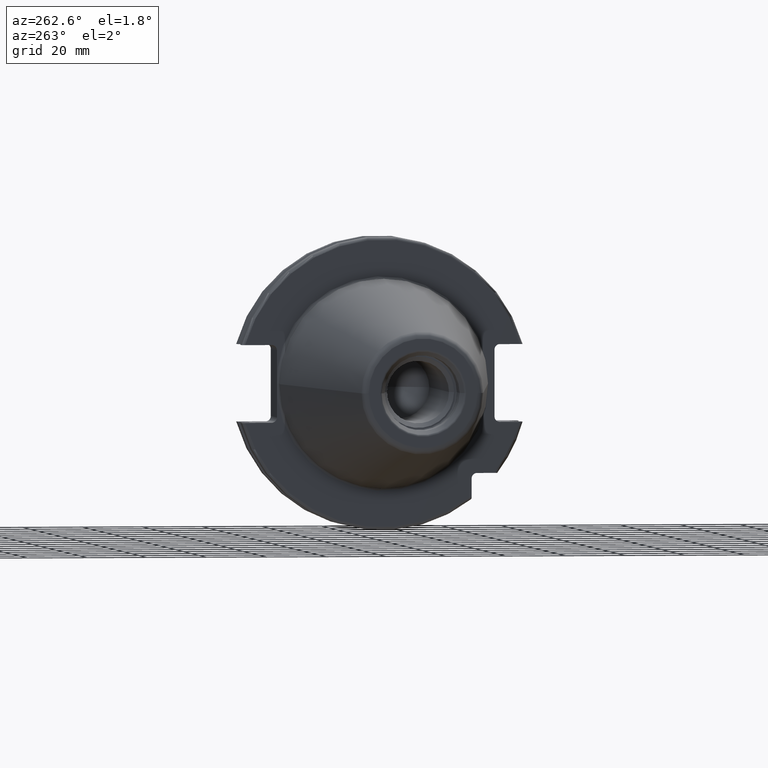
[diagram: clean part render]
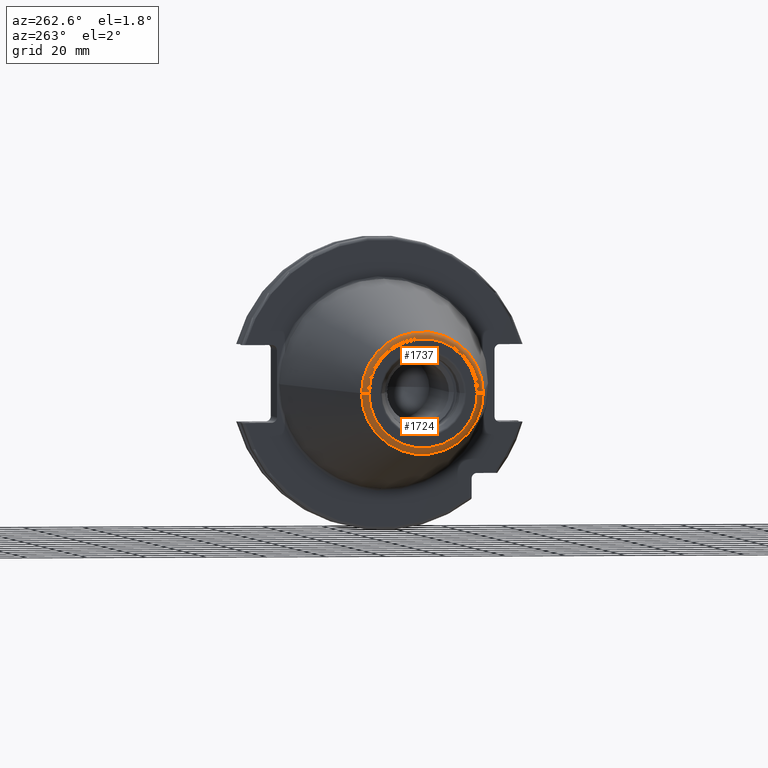
[diagram: same view with one multi-face feature highlighted, each face labeled with its STEP entity id]
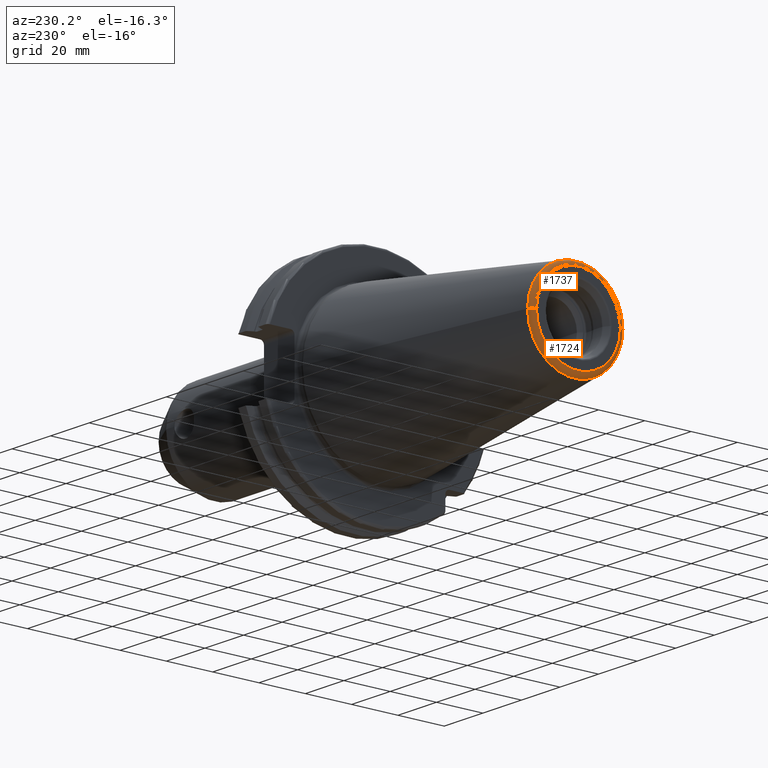
[diagram: same view with one multi-face feature highlighted, each face labeled with its STEP entity id]
A machine part, auxiliary view. The highlighted faces form ONE feature: a constant-radius fillet chain: 2 tangent blend faces with common blend radius 2.25 mm. The faces share edges in the B-rep.
A second angle (auxiliary view) of the same feature is appended — it is thin or edge-on in the first view.
Their STEP definitions:
[1] entity #1724 (Torus):
#2=CARTESIAN_POINT('',(-1.016E2,0.E0,0.E0));
#3=DIRECTION('',(-1.E0,0.E0,0.E0));
#4=DIRECTION('',(0.E0,1.E0,0.E0));
#5=AXIS2_PLACEMENT_3D('',#2,#3,#4);
#22=CARTESIAN_POINT('',(-9.935E1,1.816144700117E1,0.E0));
#23=DIRECTION('',(0.E0,0.E0,1.E0));
#24=DIRECTION('',(-1.443186691705E-1,9.895312636440E-1,0.E0));
#25=AXIS2_PLACEMENT_3D('',#22,#23,#24);
#27=CARTESIAN_POINT('',(-9.935E1,-1.816144700117E1,0.E0));
#28=DIRECTION('',(0.E0,0.E0,-1.E0));
#29=DIRECTION('',(-1.443186691705E-1,-9.895312636440E-1,0.E0));
#30=AXIS2_PLACEMENT_3D('',#27,#28,#29);
#32=CARTESIAN_POINT('',(-9.967471700563E1,0.E0,0.E0));
#33=DIRECTION('',(-1.E0,0.E0,0.E0));
#34=DIRECTION('',(0.E0,1.E0,0.E0));
#35=AXIS2_PLACEMENT_3D('',#32,#33,#34);
#1417=CARTESIAN_POINT('',(-9.967471700563E1,2.038789234437E1,0.E0));
#1418=CARTESIAN_POINT('',(-1.016E2,1.816144700117E1,0.E0));
#1419=VERTEX_POINT('',#1417);
#1420=VERTEX_POINT('',#1418);
#1421=CARTESIAN_POINT('',(-9.967471700563E1,-2.038789234437E1,0.E0));
#1422=CARTESIAN_POINT('',(-1.016E2,-1.816144700117E1,0.E0));
#1423=VERTEX_POINT('',#1421);
#1424=VERTEX_POINT('',#1422);
#1710=CARTESIAN_POINT('',(-9.935E1,0.E0,0.E0));
#1711=DIRECTION('',(1.E0,0.E0,0.E0));
#1712=DIRECTION('',(0.E0,-1.E0,0.E0));
#1713=AXIS2_PLACEMENT_3D('',#1710,#1711,#1712);
#1714=TOROIDAL_SURFACE('',#1713,1.816144700117E1,2.25E0);
#1716=ORIENTED_EDGE('',*,*,#1715,.T.);
#1717=ORIENTED_EDGE('',*,*,#1697,.T.);
#1719=ORIENTED_EDGE('',*,*,#1718,.F.);
#1721=ORIENTED_EDGE('',*,*,#1720,.F.);
#1722=EDGE_LOOP('',(#1716,#1717,#1719,#1721));
#1723=FACE_OUTER_BOUND('',#1722,.F.);
#1724=ADVANCED_FACE('',(#1723),#1714,.T.);
#6=CIRCLE('',#5,1.816144700117E1);
#26=CIRCLE('',#25,2.25E0);
#31=CIRCLE('',#30,2.25E0);
#36=CIRCLE('',#35,2.038789234437E1);
#1697=EDGE_CURVE('',#1420,#1424,#6,.T.);
#1715=EDGE_CURVE('',#1419,#1420,#26,.T.);
#1718=EDGE_CURVE('',#1423,#1424,#31,.T.);
#1720=EDGE_CURVE('',#1419,#1423,#36,.T.);
[2] entity #1737 (Torus):
#7=CARTESIAN_POINT('',(-1.016E2,0.E0,0.E0));
#8=DIRECTION('',(1.E0,0.E0,0.E0));
#9=DIRECTION('',(0.E0,1.E0,0.E0));
#10=AXIS2_PLACEMENT_3D('',#7,#8,#9);
#22=CARTESIAN_POINT('',(-9.935E1,1.816144700117E1,0.E0));
#23=DIRECTION('',(0.E0,0.E0,1.E0));
#24=DIRECTION('',(-1.443186691705E-1,9.895312636440E-1,0.E0));
#25=AXIS2_PLACEMENT_3D('',#22,#23,#24);
#27=CARTESIAN_POINT('',(-9.935E1,-1.816144700117E1,0.E0));
#28=DIRECTION('',(0.E0,0.E0,-1.E0));
#29=DIRECTION('',(-1.443186691705E-1,-9.895312636440E-1,0.E0));
#30=AXIS2_PLACEMENT_3D('',#27,#28,#29);
#37=CARTESIAN_POINT('',(-9.967471700563E1,0.E0,0.E0));
#38=DIRECTION('',(1.E0,0.E0,0.E0));
#39=DIRECTION('',(0.E0,1.E0,0.E0));
#40=AXIS2_PLACEMENT_3D('',#37,#38,#39);
#1417=CARTESIAN_POINT('',(-9.967471700563E1,2.038789234437E1,0.E0));
#1418=CARTESIAN_POINT('',(-1.016E2,1.816144700117E1,0.E0));
#1419=VERTEX_POINT('',#1417);
#1420=VERTEX_POINT('',#1418);
#1421=CARTESIAN_POINT('',(-9.967471700563E1,-2.038789234437E1,0.E0));
#1422=CARTESIAN_POINT('',(-1.016E2,-1.816144700117E1,0.E0));
#1423=VERTEX_POINT('',#1421);
#1424=VERTEX_POINT('',#1422);
#1725=CARTESIAN_POINT('',(-9.935E1,0.E0,0.E0));
#1726=DIRECTION('',(1.E0,0.E0,0.E0));
#1727=DIRECTION('',(0.E0,-1.E0,0.E0));
#1728=AXIS2_PLACEMENT_3D('',#1725,#1726,#1727);
#1729=TOROIDAL_SURFACE('',#1728,1.816144700117E1,2.25E0);
#1730=ORIENTED_EDGE('',*,*,#1715,.F.);
#1732=ORIENTED_EDGE('',*,*,#1731,.T.);
#1733=ORIENTED_EDGE('',*,*,#1718,.T.);
#1734=ORIENTED_EDGE('',*,*,#1699,.F.);
#1735=EDGE_LOOP('',(#1730,#1732,#1733,#1734));
#1736=FACE_OUTER_BOUND('',#1735,.F.);
#1737=ADVANCED_FACE('',(#1736),#1729,.T.);
#11=CIRCLE('',#10,1.816144700117E1);
#26=CIRCLE('',#25,2.25E0);
#31=CIRCLE('',#30,2.25E0);
#41=CIRCLE('',#40,2.038789234437E1);
#1699=EDGE_CURVE('',#1420,#1424,#11,.T.);
#1715=EDGE_CURVE('',#1419,#1420,#26,.T.);
#1718=EDGE_CURVE('',#1423,#1424,#31,.T.);
#1731=EDGE_CURVE('',#1419,#1423,#41,.T.);